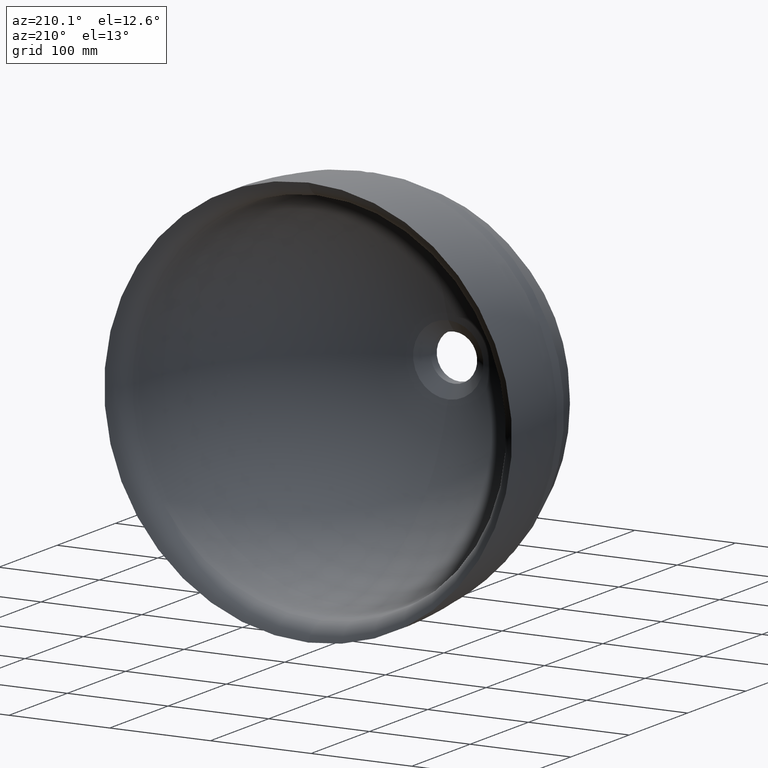
[diagram: clean part render]
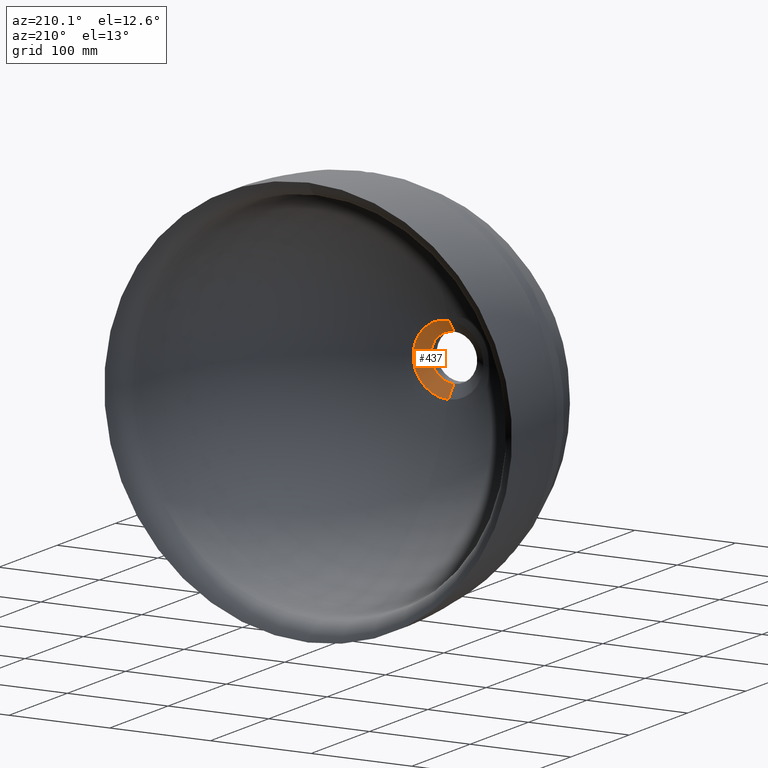
[diagram: same view with one face highlighted and labeled with its STEP entity id]
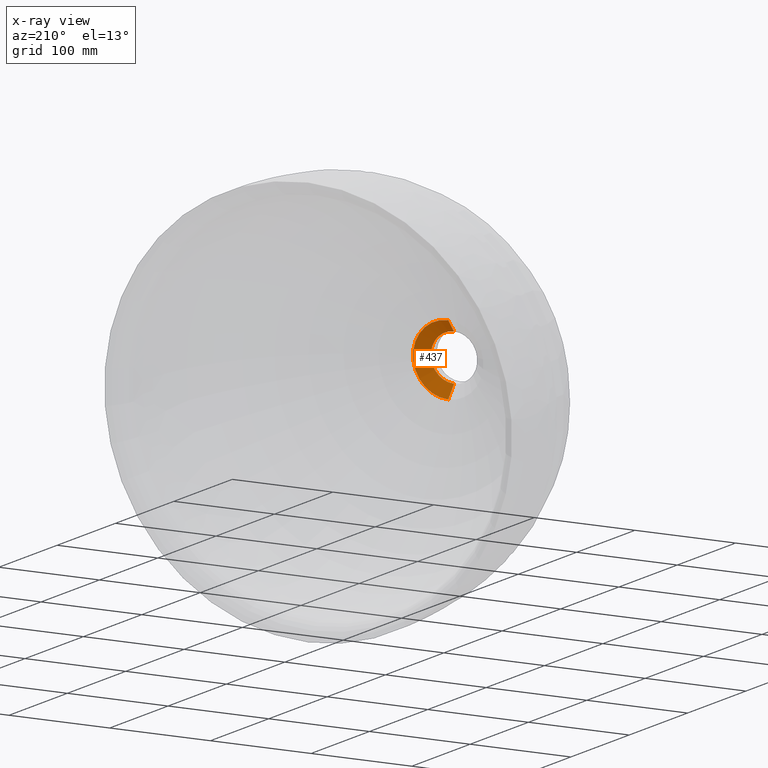
[diagram: x-ray of the same camera — body ghosted, the highlighted face saturated]
A machine part, auxiliary view. The second image highlights one B-rep face of the part: STEP entity #437.
The next image is the same camera in x-ray: the body ghosted, the highlighted face saturated — about 0% of this face is hidden behind the body in this view.
In plain terms, the highlighted conical surface has half-angle 50 deg.
Its self-contained STEP definition (entity closure, byte-faithful):
#9 = CARTESIAN_POINT ( 'NONE',  ( 2.816687638038930100E-015, 9.999999999999994700, 23.00000000000014600 ) ) ;
#11 = ORIENTED_EDGE ( 'NONE', *, *, #689, .F. ) ;
#13 = CIRCLE ( 'NONE', #445, 23.00000000000014600 ) ;
#29 = CARTESIAN_POINT ( 'NONE',  ( 0.0000000000000000000, 9.999999999999994700, 0.0000000000000000000 ) ) ;
#62 = EDGE_CURVE ( 'NONE', #267, #128, #90, .T. ) ;
#83 = DIRECTION ( 'NONE',  ( 0.0000000000000000000, 0.0000000000000000000, -1.000000000000000000 ) ) ;
#90 = LINE ( 'NONE', #392, #147 ) ;
#97 = AXIS2_PLACEMENT_3D ( 'NONE', #616, #672, #252 ) ;
#104 = ORIENTED_EDGE ( 'NONE', *, *, #295, .T. ) ;
#111 = CARTESIAN_POINT ( 'NONE',  ( 0.0000000000000000000, 9.999999999999994700, -23.00000000000014600 ) ) ;
#128 = VERTEX_POINT ( 'NONE', #356 ) ;
#147 = VECTOR ( 'NONE', #502, 1000.000000000000000 ) ;
#167 = DIRECTION ( 'NONE',  ( 0.0000000000000000000, 1.000000000000000000, 0.0000000000000000000 ) ) ;
#193 = DIRECTION ( 'NONE',  ( 9.381338752702746800E-017, 0.6427876096865378100, -0.7660444431189793500 ) ) ;
#222 = VERTEX_POINT ( 'NONE', #111 ) ;
#226 = VERTEX_POINT ( 'NONE', #543 ) ;
#252 = DIRECTION ( 'NONE',  ( 0.0000000000000000000, 0.0000000000000000000, -1.000000000000000000 ) ) ;
#267 = VERTEX_POINT ( 'NONE', #9 ) ;
#295 = EDGE_CURVE ( 'NONE', #222, #267, #13, .T. ) ;
#304 = ORIENTED_EDGE ( 'NONE', *, *, #62, .T. ) ;
#309 = CARTESIAN_POINT ( 'NONE',  ( 2.816687638038930100E-015, 9.999999999999994700, -23.00000000000014600 ) ) ;
#352 = DIRECTION ( 'NONE',  ( 0.0000000000000000000, 0.0000000000000000000, 1.000000000000000000 ) ) ;
#356 = CARTESIAN_POINT ( 'NONE',  ( 1.338496286934549900E-014, 19.99999999999998900, 34.91753592594228900 ) ) ;
#366 = EDGE_CURVE ( 'NONE', #222, #226, #483, .T. ) ;
#367 = ORIENTED_EDGE ( 'NONE', *, *, #366, .F. ) ;
#373 = CIRCLE ( 'NONE', #97, 34.91753592594228900 ) ;
#392 = CARTESIAN_POINT ( 'NONE',  ( 0.0000000000000000000, 9.999999999999994700, 23.00000000000014600 ) ) ;
#407 = CONICAL_SURFACE ( 'NONE', #452, 23.00000000000014600, 0.8726646259971667700 ) ;
#416 = DIRECTION ( 'NONE',  ( -0.0000000000000000000, -1.000000000000000000, -0.0000000000000000000 ) ) ;
#429 = VECTOR ( 'NONE', #193, 1000.000000000000000 ) ;
#437 = ADVANCED_FACE ( 'NONE', ( #693 ), #407, .F. ) ;
#445 = AXIS2_PLACEMENT_3D ( 'NONE', #29, #416, #83 ) ;
#452 = AXIS2_PLACEMENT_3D ( 'NONE', #642, #167, #352 ) ;
#483 = LINE ( 'NONE', #309, #429 ) ;
#502 = DIRECTION ( 'NONE',  ( 0.0000000000000000000, 0.6427876096865378100, 0.7660444431189793500 ) ) ;
#543 = CARTESIAN_POINT ( 'NONE',  ( 0.0000000000000000000, 19.99999999999998900, -34.91753592594228900 ) ) ;
#616 = CARTESIAN_POINT ( 'NONE',  ( 0.0000000000000000000, 19.99999999999998900, 0.0000000000000000000 ) ) ;
#633 = EDGE_LOOP ( 'NONE', ( #367, #104, #304, #11 ) ) ;
#642 = CARTESIAN_POINT ( 'NONE',  ( 0.0000000000000000000, 9.999999999999994700, 0.0000000000000000000 ) ) ;
#672 = DIRECTION ( 'NONE',  ( -0.0000000000000000000, -1.000000000000000000, -0.0000000000000000000 ) ) ;
#689 = EDGE_CURVE ( 'NONE', #226, #128, #373, .T. ) ;
#693 = FACE_OUTER_BOUND ( 'NONE', #633, .T. ) ;